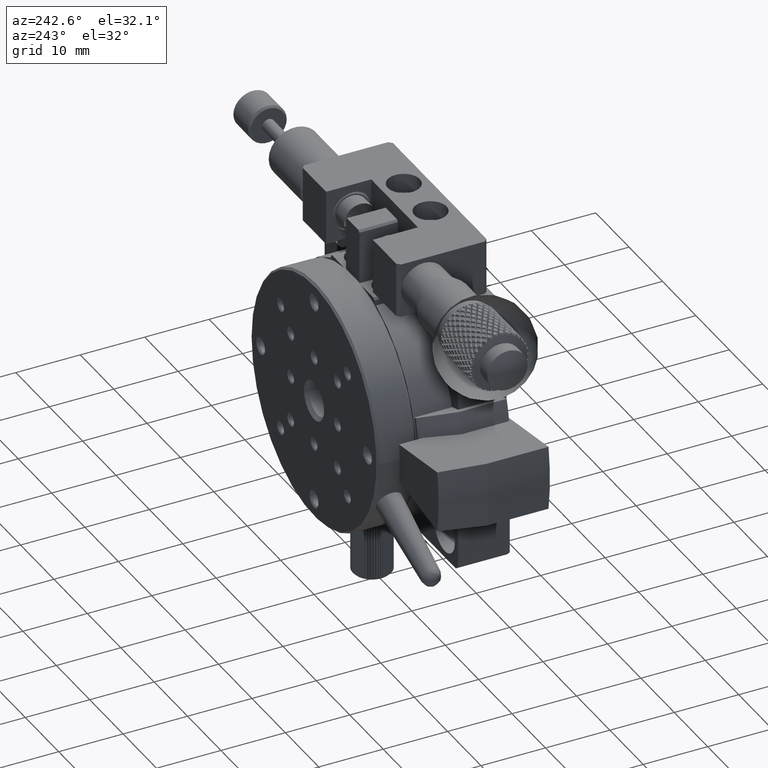
[diagram: clean part render]
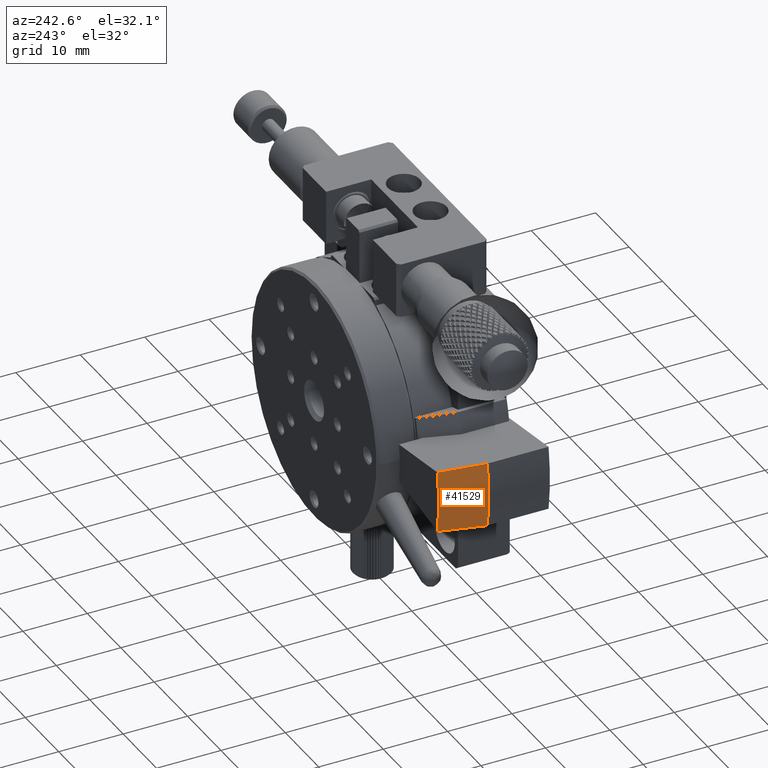
[diagram: same view with one face highlighted and labeled with its STEP entity id]
A machine part, auxiliary view. The second image highlights one B-rep face of the part: STEP entity #41529.
In plain terms, the highlighted conical surface has half-angle 12.095 deg.
Its self-contained STEP definition (entity closure, byte-faithful):
#2440 = CARTESIAN_POINT ( 'NONE',  ( -12.60110803324100104, 10.00000000000000178, -25.03686123209991266 ) ) ;
#2848 = ORIENTED_EDGE ( 'NONE', *, *, #38795, .T. ) ;
#7544 = FACE_OUTER_BOUND ( 'NONE', #45076, .T. ) ;
#7897 = AXIS2_PLACEMENT_3D ( 'NONE', #10024, #83153, #40230 ) ;
#9860 = DIRECTION ( 'NONE',  ( 0.000000000000000000, 0.000000000000000000, 1.000000000000000000 ) ) ;
#10024 = CARTESIAN_POINT ( 'NONE',  ( 19.00000000000000000, 17.00000000000001421, -20.00000000000000000 ) ) ;
#13160 = DIRECTION ( 'NONE',  ( -2.710505431213761701E-17, -1.000000000000000000, 0.000000000000000000 ) ) ;
#14103 = DIRECTION ( 'NONE',  ( -0.2069172302840916466, -0.9778024140774089767, 0.03298027950080558574 ) ) ;
#19102 = AXIS2_PLACEMENT_3D ( 'NONE', #34213, #13160, #19707 ) ;
#19707 = DIRECTION ( 'NONE',  ( 1.000000000000000000, -5.421010862427522170E-17, 0.000000000000000000 ) ) ;
#21303 = EDGE_CURVE ( 'NONE', #71707, #74909, #68973, .T. ) ;
#23453 = CARTESIAN_POINT ( 'NONE',  ( 19.00000000000000000, 10.00000000000000178, -20.00000000000000000 ) ) ;
#25600 = CARTESIAN_POINT ( 'NONE',  ( -12.60110803324099926, 10.00000000000001599, -14.96313876790009800 ) ) ;
#26321 = LINE ( 'NONE', #41711, #84330 ) ;
#33254 = CIRCLE ( 'NONE', #7897, 30.50000000000000355 ) ;
#34213 = CARTESIAN_POINT ( 'NONE',  ( 19.00000000000000000, 10.00000000000000000, -20.00000000000000000 ) ) ;
#37031 = VERTEX_POINT ( 'NONE', #87445 ) ;
#38795 = EDGE_CURVE ( 'NONE', #63313, #74909, #26321, .T. ) ;
#40230 = DIRECTION ( 'NONE',  ( 1.000000000000000000, 0.000000000000000000, 0.000000000000000000 ) ) ;
#41529 = ADVANCED_FACE ( 'NONE', ( #7544 ), #53372, .T. ) ;
#41711 = CARTESIAN_POINT ( 'NONE',  ( -11.11980609418281496, 17.00000000000000000, -24.80075836184521521 ) ) ;
#45076 = EDGE_LOOP ( 'NONE', ( #53973, #2848, #89089, #74780 ) ) ;
#53372 = CONICAL_SURFACE ( 'NONE', #19102, 32.00000000000000000, 0.2110933332227462322 ) ;
#53973 = ORIENTED_EDGE ( 'NONE', *, *, #91655, .T. ) ;
#57462 = LINE ( 'NONE', #72894, #86400 ) ;
#63313 = VERTEX_POINT ( 'NONE', #85581 ) ;
#68973 = CIRCLE ( 'NONE', #83824, 32.00000000000000000 ) ;
#71707 = VERTEX_POINT ( 'NONE', #25600 ) ;
#72894 = CARTESIAN_POINT ( 'NONE',  ( -11.11980609418281496, 17.00000000000000000, -15.19924163815478657 ) ) ;
#74780 = ORIENTED_EDGE ( 'NONE', *, *, #85200, .F. ) ;
#74909 = VERTEX_POINT ( 'NONE', #2440 ) ;
#75335 = DIRECTION ( 'NONE',  ( -0.2069172302840916466, -0.9778024140774089767, -0.03298027950080534287 ) ) ;
#81737 = DIRECTION ( 'NONE',  ( -0.000000000000000000, -1.000000000000000000, -0.000000000000000000 ) ) ;
#83153 = DIRECTION ( 'NONE',  ( -2.710505431213761701E-17, -1.000000000000000000, 0.000000000000000000 ) ) ;
#83824 = AXIS2_PLACEMENT_3D ( 'NONE', #23453, #81737, #9860 ) ;
#84330 = VECTOR ( 'NONE', #75335, 1000.000000000000227 ) ;
#85200 = EDGE_CURVE ( 'NONE', #37031, #71707, #57462, .T. ) ;
#85581 = CARTESIAN_POINT ( 'NONE',  ( -11.11980609418282384, 17.00000000000000711, -24.80075836184521876 ) ) ;
#86400 = VECTOR ( 'NONE', #14103, 1000.000000000000227 ) ;
#87445 = CARTESIAN_POINT ( 'NONE',  ( -11.11980609418282029, 17.00000000000001421, -15.19924163815478479 ) ) ;
#89089 = ORIENTED_EDGE ( 'NONE', *, *, #21303, .F. ) ;
#91655 = EDGE_CURVE ( 'NONE', #37031, #63313, #33254, .T. ) ;